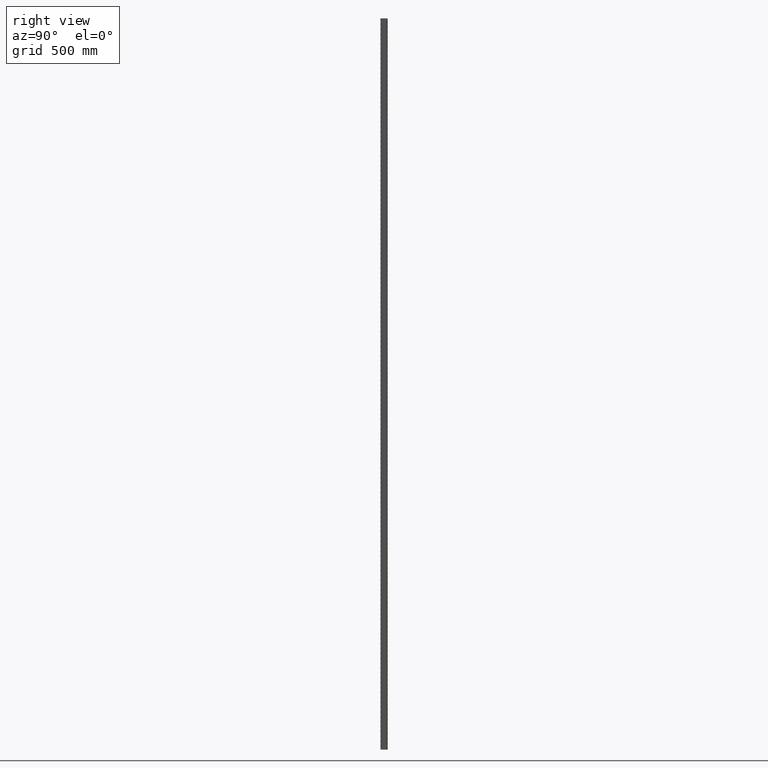
[diagram: clean part render]
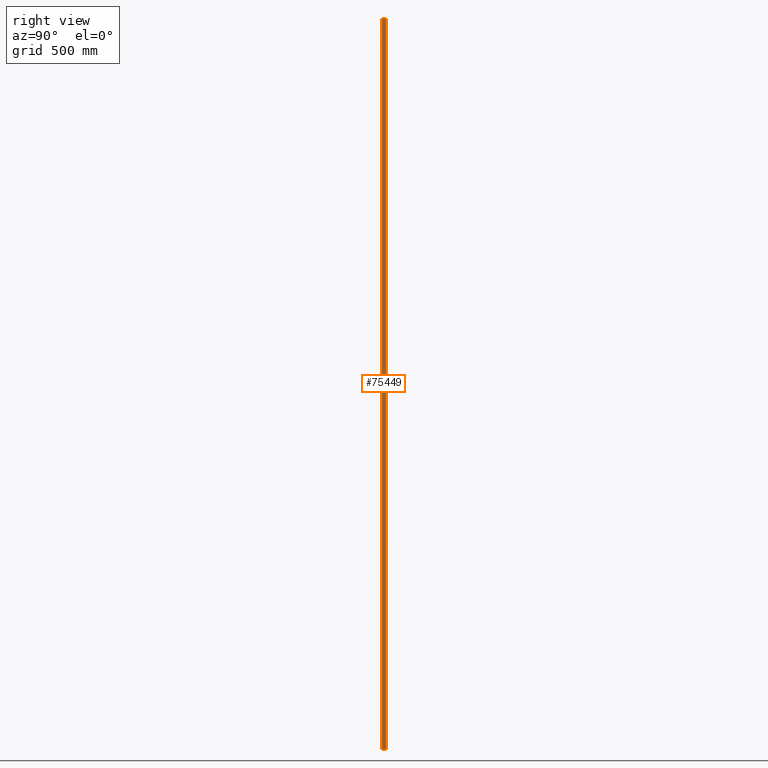
[diagram: same view with one face highlighted and labeled with its STEP entity id]
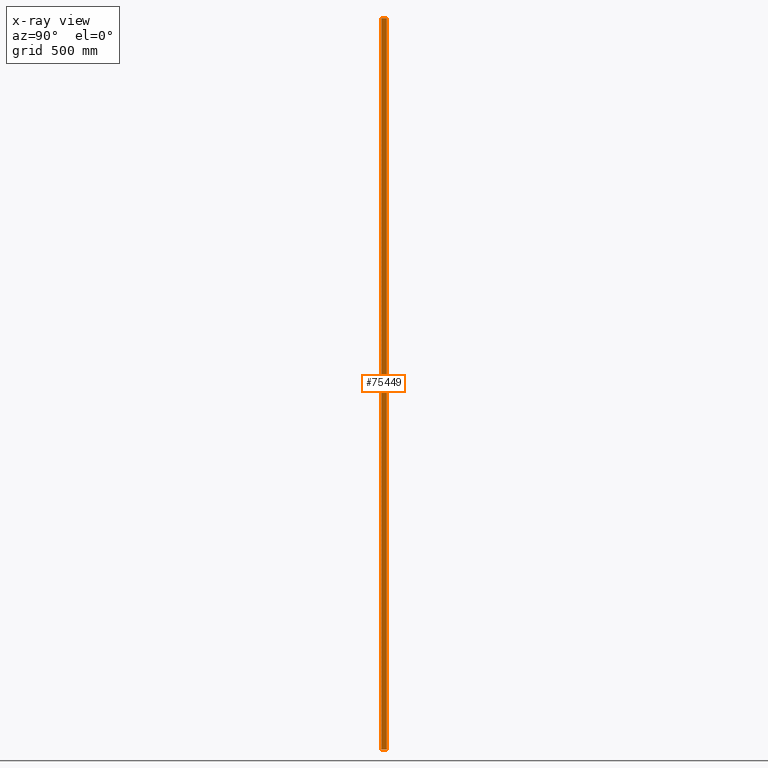
[diagram: x-ray of the same camera — body ghosted, the highlighted face saturated]
A machine part, right view. The second image highlights one B-rep face of the part: STEP entity #75449.
The next image is the same camera in x-ray: the body ghosted, the highlighted face saturated — about 0% of this face is hidden behind the body in this view.
In plain terms, the highlighted planar face has unit normal (1, 0, -0).
Its self-contained STEP definition (entity closure, byte-faithful):
#1998 = EDGE_CURVE ( 'NONE', #101598, #100942, #55254, .T. ) ;
#3790 = PLANE ( 'NONE',  #87273 ) ;
#7463 = VERTEX_POINT ( 'NONE', #13886 ) ;
#11427 = CARTESIAN_POINT ( 'NONE',  ( 25.00000000000000711, -11.24999999999999112, 0.000000000000000000 ) ) ;
#13886 = CARTESIAN_POINT ( 'NONE',  ( 24.99999999999999645, 11.25000000000000711, 0.000000000000000000 ) ) ;
#14752 = EDGE_CURVE ( 'NONE', #100942, #79326, #35805, .T. ) ;
#15588 = LINE ( 'NONE', #75718, #115934 ) ;
#19849 = EDGE_LOOP ( 'NONE', ( #74816, #44167, #61185, #111228 ) ) ;
#20285 = VECTOR ( 'NONE', #124492, 1000.000000000000000 ) ;
#21200 = EDGE_CURVE ( 'NONE', #101598, #7463, #65612, .T. ) ;
#23346 = DIRECTION ( 'NONE',  ( 1.000000000000000000, 3.469446951953614189E-16, -0.000000000000000000 ) ) ;
#26103 = VECTOR ( 'NONE', #81378, 1000.000000000000000 ) ;
#31499 = DIRECTION ( 'NONE',  ( -3.469446951953614189E-16, 1.000000000000000000, -0.000000000000000000 ) ) ;
#32556 = CARTESIAN_POINT ( 'NONE',  ( 24.99999999999999645, 15.00000000000000533, 0.000000000000000000 ) ) ;
#35805 = LINE ( 'NONE', #79898, #93521 ) ;
#44167 = ORIENTED_EDGE ( 'NONE', *, *, #1998, .T. ) ;
#54928 = CARTESIAN_POINT ( 'NONE',  ( 24.99999999999999645, 11.25000000000000711, -3000.000000000000000 ) ) ;
#55254 = LINE ( 'NONE', #94757, #20285 ) ;
#61185 = ORIENTED_EDGE ( 'NONE', *, *, #14752, .T. ) ;
#64108 = EDGE_CURVE ( 'NONE', #79326, #7463, #15588, .T. ) ;
#65612 = LINE ( 'NONE', #32556, #26103 ) ;
#71137 = FACE_OUTER_BOUND ( 'NONE', #19849, .T. ) ;
#74816 = ORIENTED_EDGE ( 'NONE', *, *, #21200, .F. ) ;
#75449 = ADVANCED_FACE ( 'NONE', ( #71137 ), #3790, .T. ) ;
#75718 = CARTESIAN_POINT ( 'NONE',  ( 24.99999999999999645, 11.25000000000000711, -3000.000000000000000 ) ) ;
#79326 = VERTEX_POINT ( 'NONE', #54928 ) ;
#79898 = CARTESIAN_POINT ( 'NONE',  ( 24.99999999999999645, 15.00000000000000533, -3000.000000000000000 ) ) ;
#81378 = DIRECTION ( 'NONE',  ( -3.469446951953614189E-16, 1.000000000000000000, -0.000000000000000000 ) ) ;
#87273 = AXIS2_PLACEMENT_3D ( 'NONE', #110026, #23346, #111687 ) ;
#93521 = VECTOR ( 'NONE', #31499, 1000.000000000000000 ) ;
#94757 = CARTESIAN_POINT ( 'NONE',  ( 25.00000000000000711, -11.24999999999999112, -3000.000000000000000 ) ) ;
#100942 = VERTEX_POINT ( 'NONE', #108714 ) ;
#101598 = VERTEX_POINT ( 'NONE', #11427 ) ;
#108714 = CARTESIAN_POINT ( 'NONE',  ( 25.00000000000000711, -11.24999999999999112, -3000.000000000000000 ) ) ;
#110026 = CARTESIAN_POINT ( 'NONE',  ( 24.99999999999999645, 15.00000000000000533, -3000.000000000000000 ) ) ;
#111228 = ORIENTED_EDGE ( 'NONE', *, *, #64108, .T. ) ;
#111687 = DIRECTION ( 'NONE',  ( -3.469446951953614189E-16, 1.000000000000000000, 0.000000000000000000 ) ) ;
#115934 = VECTOR ( 'NONE', #124523, 1000.000000000000000 ) ;
#124492 = DIRECTION ( 'NONE',  ( -0.000000000000000000, -0.000000000000000000, -1.000000000000000000 ) ) ;
#124523 = DIRECTION ( 'NONE',  ( 0.000000000000000000, 0.000000000000000000, 1.000000000000000000 ) ) ;